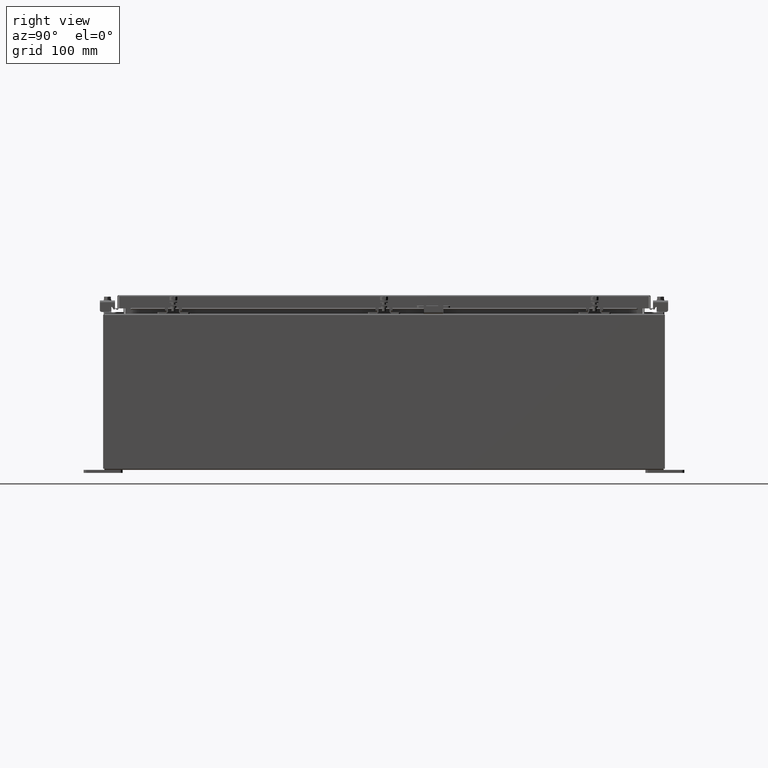
[diagram: clean part render]
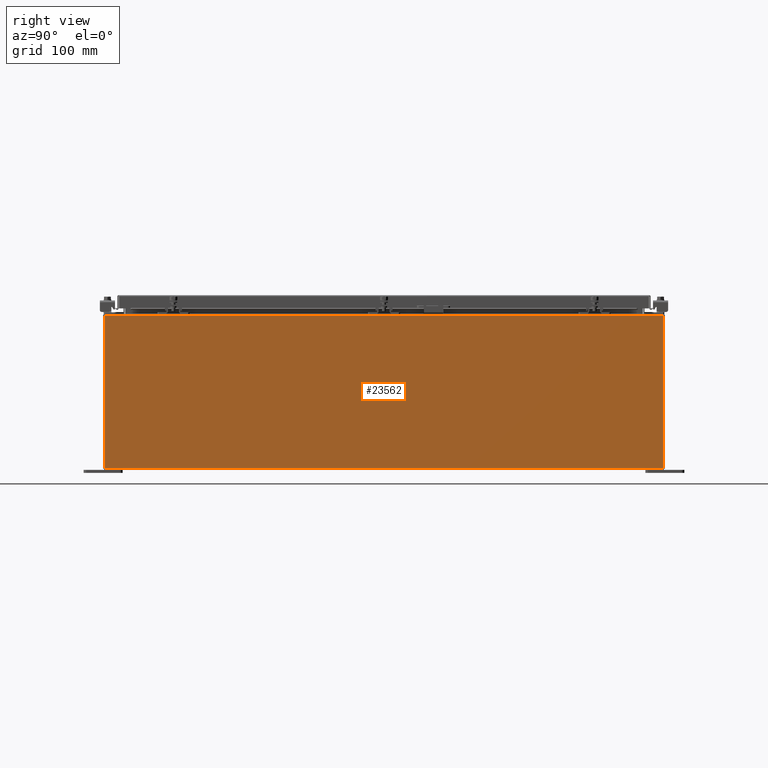
[diagram: same view with one face highlighted and labeled with its STEP entity id]
A machine part, right view. The second image highlights one B-rep face of the part: STEP entity #23562.
In plain terms, the highlighted planar face has unit normal (-1, 0, 0).
Its self-contained STEP definition (entity closure, byte-faithful):
#933 = PLANE ( 'NONE',  #9436 ) ;
#2085 = CARTESIAN_POINT ( 'NONE',  ( 12.00000000000003700, 17.92529999999999600, 9.837599999999993000 ) ) ;
#4060 = EDGE_CURVE ( 'NONE', #18895, #27005, #6761, .T. ) ;
#6761 = LINE ( 'NONE', #26569, #40703 ) ;
#7042 = DIRECTION ( 'NONE',  ( 3.523082860860888200E-015, -2.201926788038055100E-016, 1.000000000000000000 ) ) ;
#7443 = VECTOR ( 'NONE', #14638, 39.37007874015748100 ) ;
#9436 = AXIS2_PLACEMENT_3D ( 'NONE', #23912, #30541, #10844 ) ;
#9648 = CARTESIAN_POINT ( 'NONE',  ( 12.00000000000003600, -17.92530000000000000, 9.837600000000000100 ) ) ;
#9857 = EDGE_CURVE ( 'NONE', #27005, #32665, #29102, .T. ) ;
#10525 = LINE ( 'NONE', #24519, #7443 ) ;
#10844 = DIRECTION ( 'NONE',  ( 3.523082860860887800E-015, 0.0000000000000000000, 1.000000000000000000 ) ) ;
#14477 = ORIENTED_EDGE ( 'NONE', *, *, #4060, .T. ) ;
#14638 = DIRECTION ( 'NONE',  ( -3.523082860860888200E-015, -2.201926788038054900E-016, -1.000000000000000000 ) ) ;
#16601 = EDGE_LOOP ( 'NONE', ( #36055, #35314, #23920, #14477 ) ) ;
#17117 = CARTESIAN_POINT ( 'NONE',  ( 12.00000000000003700, 17.92529999999999600, 9.837599999999993000 ) ) ;
#18895 = VERTEX_POINT ( 'NONE', #33635 ) ;
#20350 = VECTOR ( 'NONE', #33480, 39.37007874015748100 ) ;
#23525 = VECTOR ( 'NONE', #35246, 39.37007874015748100 ) ;
#23562 = ADVANCED_FACE ( 'NONE', ( #34627 ), #933, .F. ) ;
#23912 = CARTESIAN_POINT ( 'NONE',  ( 12.00000000000000200, 0.0000000000000000000, -4.253145845136049800E-014 ) ) ;
#23920 = ORIENTED_EDGE ( 'NONE', *, *, #41534, .F. ) ;
#24519 = CARTESIAN_POINT ( 'NONE',  ( 12.00000000000000200, -17.92530000000000400, -3.858735291050771800E-014 ) ) ;
#26077 = EDGE_CURVE ( 'NONE', #32665, #31083, #10525, .T. ) ;
#26569 = CARTESIAN_POINT ( 'NONE',  ( 12.00000000000000200, 17.92529999999999600, -3.858735291050771800E-014 ) ) ;
#27005 = VERTEX_POINT ( 'NONE', #2085 ) ;
#29102 = LINE ( 'NONE', #17117, #20350 ) ;
#30541 = DIRECTION ( 'NONE',  ( -1.000000000000000000, 0.0000000000000000000, 3.523082860860887800E-015 ) ) ;
#31083 = VERTEX_POINT ( 'NONE', #34528 ) ;
#32665 = VERTEX_POINT ( 'NONE', #9648 ) ;
#33480 = DIRECTION ( 'NONE',  ( -0.0000000000000000000, -1.000000000000000000, -0.0000000000000000000 ) ) ;
#33635 = CARTESIAN_POINT ( 'NONE',  ( 12.00000000000000200, 17.92529999999999600, 0.01300000000000203600 ) ) ;
#34528 = CARTESIAN_POINT ( 'NONE',  ( 12.00000000000000200, -17.92530000000000400, 0.01299999999999946700 ) ) ;
#34627 = FACE_OUTER_BOUND ( 'NONE', #16601, .T. ) ;
#35102 = CARTESIAN_POINT ( 'NONE',  ( 12.00000000000000200, -17.92530000000000000, 0.01299999999999985200 ) ) ;
#35246 = DIRECTION ( 'NONE',  ( -2.147696684564447600E-031, -1.000000000000000000, -6.096072018129156600E-017 ) ) ;
#35314 = ORIENTED_EDGE ( 'NONE', *, *, #26077, .T. ) ;
#36055 = ORIENTED_EDGE ( 'NONE', *, *, #9857, .T. ) ;
#40703 = VECTOR ( 'NONE', #7042, 39.37007874015748100 ) ;
#41036 = LINE ( 'NONE', #35102, #23525 ) ;
#41534 = EDGE_CURVE ( 'NONE', #18895, #31083, #41036, .T. ) ;